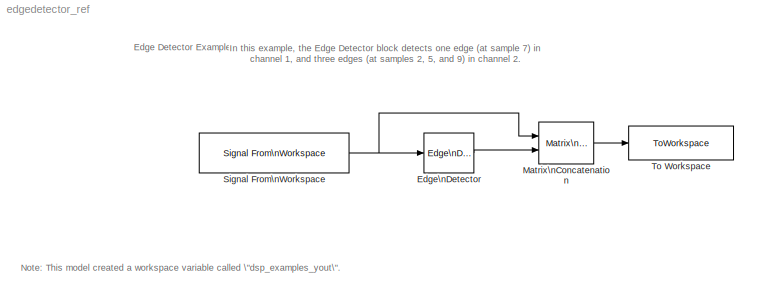
MODEL edgedetector_ref
KIND model
CONFIG AbsTol = auto
CONFIG FixedStep = auto
CONFIG MaxStep = auto
CONFIG MinStep = auto
CONFIG PostLoadFcn = set_param(gcs,'SimulationCommand','Update')
CONFIG RelTol = 1e-3
CONFIG Solver = FixedStepDiscrete
CONFIG SolverMode = Auto
CONFIG StartTime = 0.0
CONFIG StopTime = 10
BLOCK [Reference] Edge\nDetector  REF=dspswit3/Edge\nDetector
  Ports = [1, 1]
  SourceBlock = dspswit3/Edge\nDetector
  SourceType = Edge Detector
BLOCK [Reference] Matrix\nConcatenation  REF=simulink/Math\nOperations/Matrix\nConcatenation
  Ports = [2, 1]
  SourceBlock = simulink/Math\nOperations/Matrix\nConcatenation
  SourceType = Matrix Concatenation
  catMethod = Horizontal
  numInports = 2
BLOCK [Reference] Signal From\nWorkspace  REF=dspsrcs4/Signal From\nWorkspace
  OutputAfterFinalValue = Setting to zero
  Ports = [0, 1]
  SourceBlock = dspsrcs4/Signal From\nWorkspace
  SourceType = Signal From Workspace
  Ts = 1
  X = [(-5:5) ; 0 1 0 0 2 0 0 0 3 0 0]'
  nsamps = 3
BLOCK [ToWorkspace] To Workspace
  MaxDataPoints = inf
  SampleTime = -1
  SaveFormat = Array
  VariableName = dsp_examples_yout
ANNOTATION (root): Edge Detector Example
ANNOTATION (root): In this example, the Edge Detector block detects one edge (at sample 7) in\nchannel 1, and three edges (at samples 2, 5, and 9) in channel 2.
ANNOTATION (root): Note: This model created a workspace variable called \"dsp_examples_yout\".
LINE Edge\nDetector:1 -> Matrix\nConcatenation:2
LINE Matrix\nConcatenation:1 -> To Workspace:1
NET Signal From\nWorkspace:1 -> Edge\nDetector:1, Matrix\nConcatenation:1
note: NET lines group one-source signal fan-out (src -> all destinations, sorted); 1:1 wires keep LINE
